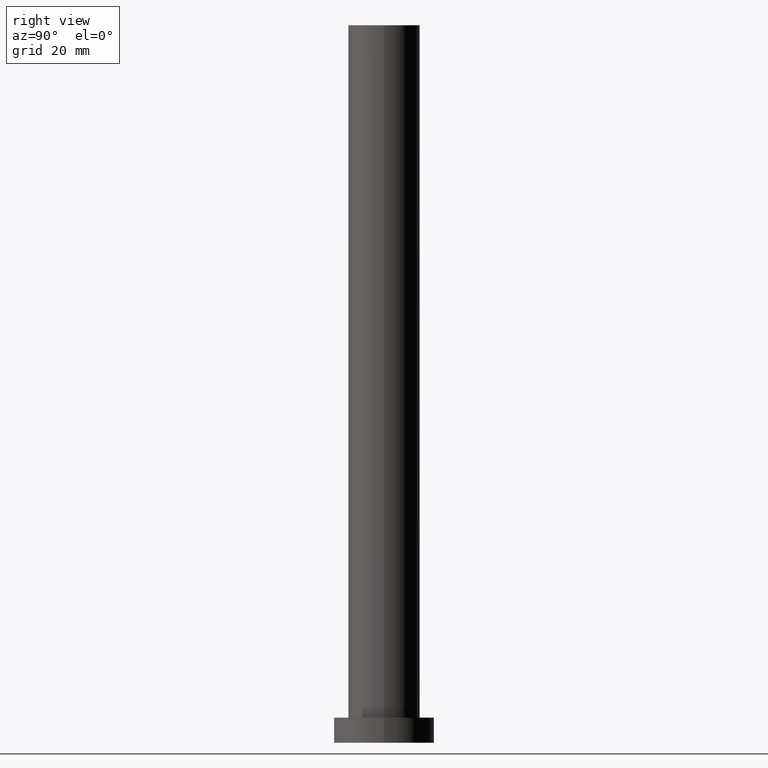
[diagram: clean part render]
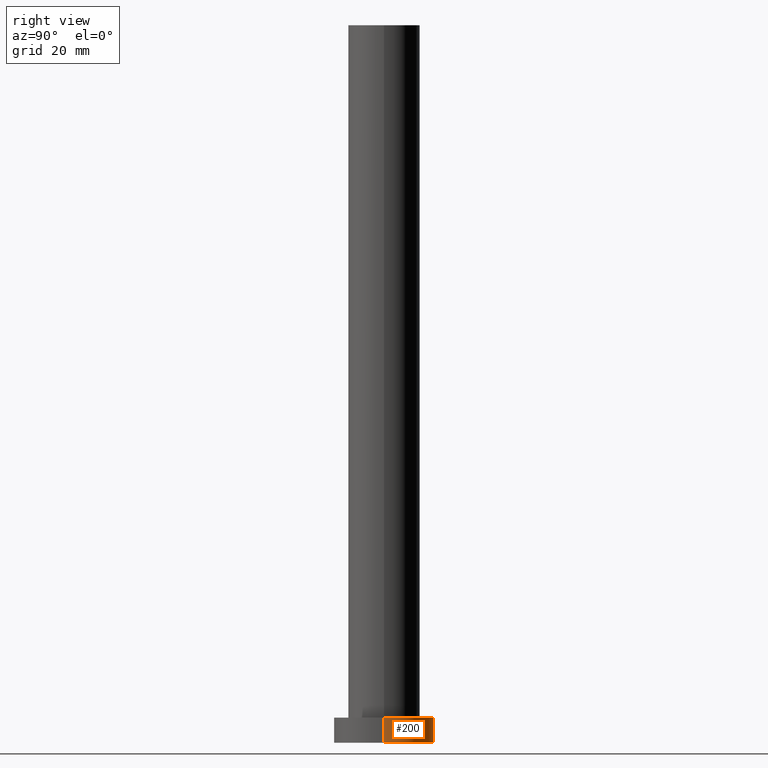
[diagram: same view with one face highlighted and labeled with its STEP entity id]
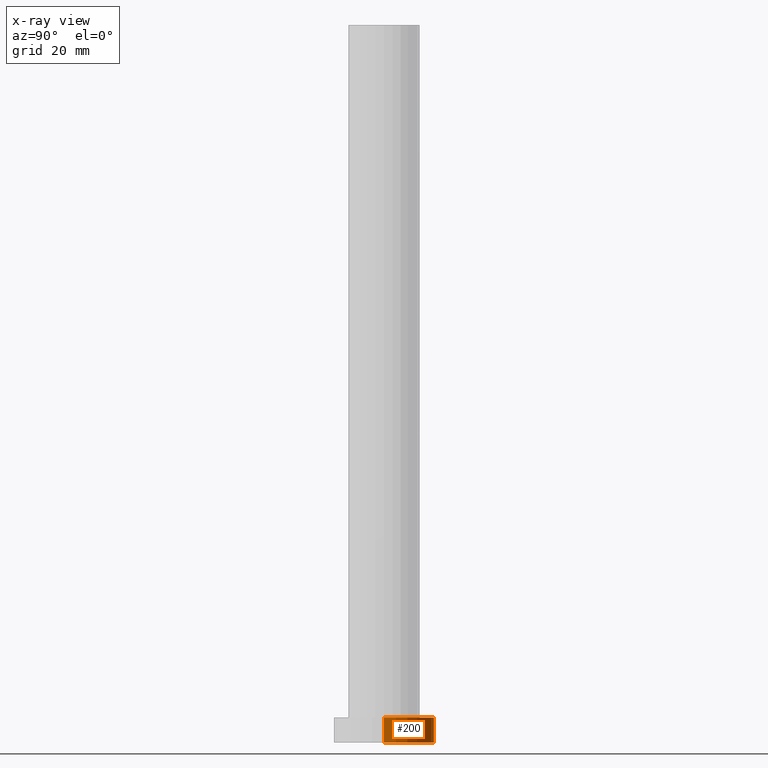
[diagram: x-ray of the same camera — body ghosted, the highlighted face saturated]
A machine part, right view. The second image highlights one B-rep face of the part: STEP entity #200.
The next image is the same camera in x-ray: the body ghosted, the highlighted face saturated — about 0% of this face is hidden behind the body in this view.
In plain terms, the highlighted cylindrical surface (partial cylindrical patch) has radius 14 mm, axis along (-0, -0, -1).
Its self-contained STEP definition (entity closure, byte-faithful):
#1 = CIRCLE ( 'NONE', #232, 14.00000000000000000 ) ;
#4 = FACE_OUTER_BOUND ( 'NONE', #219, .T. ) ;
#20 = VERTEX_POINT ( 'NONE', #244 ) ;
#22 = LINE ( 'NONE', #208, #146 ) ;
#26 = DIRECTION ( 'NONE',  ( 0.000000000000000000, 0.000000000000000000, 1.000000000000000000 ) ) ;
#41 = DIRECTION ( 'NONE',  ( -1.000000000000000000, 0.000000000000000000, 0.000000000000000000 ) ) ;
#54 = ORIENTED_EDGE ( 'NONE', *, *, #185, .T. ) ;
#56 = DIRECTION ( 'NONE',  ( -0.000000000000000000, -0.000000000000000000, -1.000000000000000000 ) ) ;
#57 = CARTESIAN_POINT ( 'NONE',  ( 14.00000000000000000, 1.714505518806294638E-15, 0.000000000000000000 ) ) ;
#62 = DIRECTION ( 'NONE',  ( -0.000000000000000000, -0.000000000000000000, -1.000000000000000000 ) ) ;
#74 = DIRECTION ( 'NONE',  ( 1.000000000000000000, 0.000000000000000000, 0.000000000000000000 ) ) ;
#77 = CARTESIAN_POINT ( 'NONE',  ( 14.00000000000000000, 1.714505518806294638E-15, 7.000000000000000000 ) ) ;
#80 = AXIS2_PLACEMENT_3D ( 'NONE', #237, #56, #41 ) ;
#81 = LINE ( 'NONE', #242, #85 ) ;
#85 = VECTOR ( 'NONE', #181, 1000.000000000000000 ) ;
#90 = VERTEX_POINT ( 'NONE', #57 ) ;
#97 = DIRECTION ( 'NONE',  ( 1.000000000000000000, 0.000000000000000000, 0.000000000000000000 ) ) ;
#101 = CARTESIAN_POINT ( 'NONE',  ( 0.000000000000000000, 0.000000000000000000, 0.000000000000000000 ) ) ;
#104 = EDGE_CURVE ( 'NONE', #20, #143, #22, .T. ) ;
#112 = VERTEX_POINT ( 'NONE', #77 ) ;
#115 = CARTESIAN_POINT ( 'NONE',  ( -14.00000000000000000, 0.000000000000000000, 0.000000000000000000 ) ) ;
#122 = EDGE_CURVE ( 'NONE', #112, #90, #81, .T. ) ;
#126 = EDGE_CURVE ( 'NONE', #112, #20, #1, .T. ) ;
#135 = CARTESIAN_POINT ( 'NONE',  ( 0.000000000000000000, 0.000000000000000000, 7.000000000000000000 ) ) ;
#143 = VERTEX_POINT ( 'NONE', #115 ) ;
#144 = AXIS2_PLACEMENT_3D ( 'NONE', #101, #220, #74 ) ;
#146 = VECTOR ( 'NONE', #62, 1000.000000000000000 ) ;
#152 = ORIENTED_EDGE ( 'NONE', *, *, #104, .F. ) ;
#154 = CYLINDRICAL_SURFACE ( 'NONE', #80, 14.00000000000000000 ) ;
#170 = ORIENTED_EDGE ( 'NONE', *, *, #126, .F. ) ;
#181 = DIRECTION ( 'NONE',  ( -0.000000000000000000, -0.000000000000000000, -1.000000000000000000 ) ) ;
#185 = EDGE_CURVE ( 'NONE', #90, #143, #214, .T. ) ;
#196 = ORIENTED_EDGE ( 'NONE', *, *, #122, .T. ) ;
#200 = ADVANCED_FACE ( 'NONE', ( #4 ), #154, .T. ) ;
#208 = CARTESIAN_POINT ( 'NONE',  ( -14.00000000000000000, 0.000000000000000000, 7.000000000000000000 ) ) ;
#214 = CIRCLE ( 'NONE', #144, 14.00000000000000000 ) ;
#219 = EDGE_LOOP ( 'NONE', ( #170, #196, #54, #152 ) ) ;
#220 = DIRECTION ( 'NONE',  ( 0.000000000000000000, 0.000000000000000000, 1.000000000000000000 ) ) ;
#232 = AXIS2_PLACEMENT_3D ( 'NONE', #135, #26, #97 ) ;
#237 = CARTESIAN_POINT ( 'NONE',  ( 0.000000000000000000, 0.000000000000000000, 7.000000000000000000 ) ) ;
#242 = CARTESIAN_POINT ( 'NONE',  ( 14.00000000000000000, 1.714505518806294638E-15, 7.000000000000000000 ) ) ;
#244 = CARTESIAN_POINT ( 'NONE',  ( -14.00000000000000000, 0.000000000000000000, 7.000000000000000000 ) ) ;